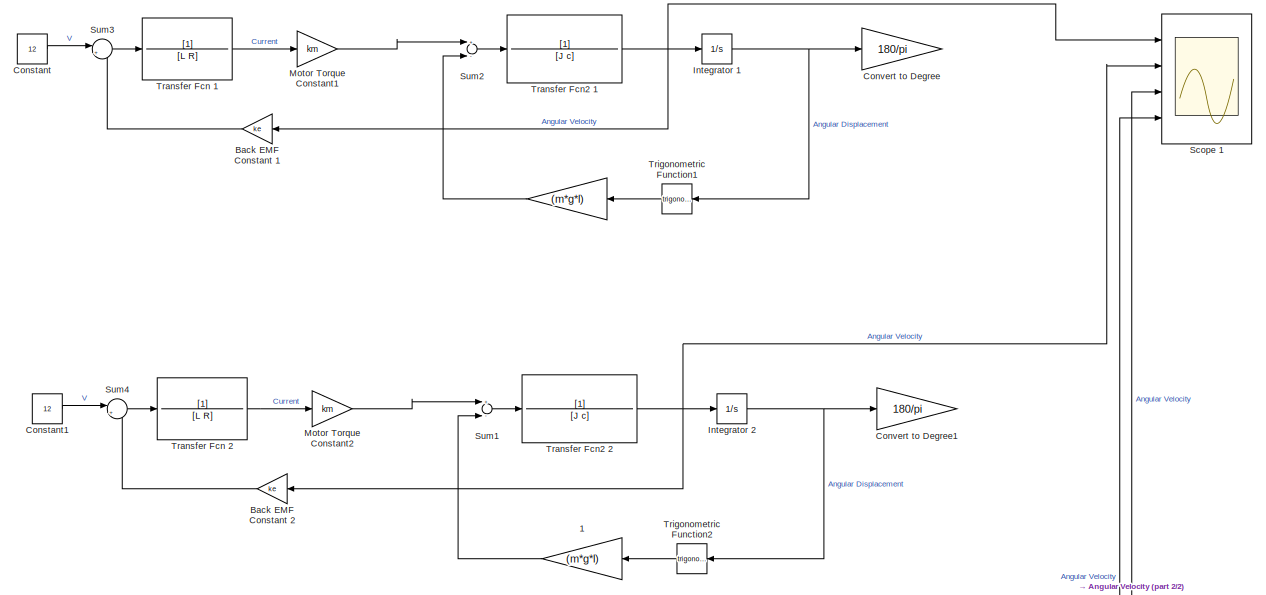
[diagram: root canvas - part 1/2, full width, top band]
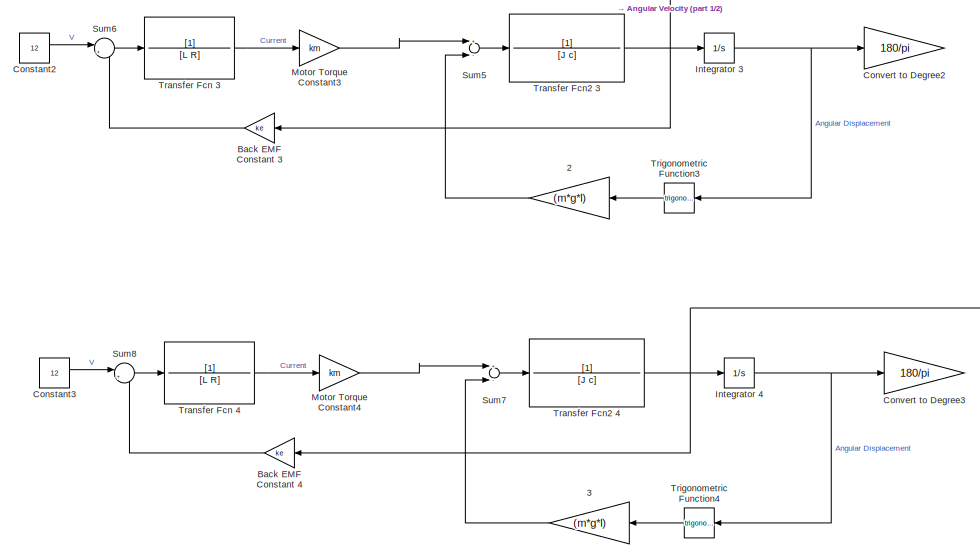
[diagram: root canvas - part 2/2, full width, bottom band]
MODEL slx_4739273ff9ae
KIND model
CONFIG AbsTol = auto
CONFIG EnableMultiTasking = off
CONFIG FixedStep = auto
CONFIG MaxStep = auto
CONFIG MinStep = auto
CONFIG RelTol = 1e-3
CONFIG SampleTimeConstraint = Unconstrained
CONFIG Solver = VariableStepAuto
CONFIG SolverName = VariableStepAuto
CONFIG StartTime = 0.0
CONFIG StopTime = 15
BLOCK [Gain]   
  Gain = (m*g*l)
  OutDataTypeStr = Inherit: Inherit via internal rule
  ParamDataTypeStr = Inherit: Inherit via internal rule
  SaturateOnIntegerOverflow = off
BLOCK [Gain]   1
  Gain = (m*g*l)
  OutDataTypeStr = Inherit: Inherit via internal rule
  ParamDataTypeStr = Inherit: Inherit via internal rule
  SaturateOnIntegerOverflow = off
BLOCK [Gain]   2
  Gain = (m*g*l)
  OutDataTypeStr = Inherit: Inherit via internal rule
  ParamDataTypeStr = Inherit: Inherit via internal rule
  SaturateOnIntegerOverflow = off
BLOCK [Gain]   3
  Gain = (m*g*l)
  OutDataTypeStr = Inherit: Inherit via internal rule
  ParamDataTypeStr = Inherit: Inherit via internal rule
  SaturateOnIntegerOverflow = off
BLOCK [Gain]   Convert to Degree
  Gain = 180/pi
  OutDataTypeStr = Inherit: Inherit via internal rule
  ParamDataTypeStr = Inherit: Inherit via internal rule
  SaturateOnIntegerOverflow = off
BLOCK [Gain]   Convert to Degree1
  Gain = 180/pi
  OutDataTypeStr = Inherit: Inherit via internal rule
  ParamDataTypeStr = Inherit: Inherit via internal rule
  SaturateOnIntegerOverflow = off
BLOCK [Gain]   Convert to Degree2
  Gain = 180/pi
  OutDataTypeStr = Inherit: Inherit via internal rule
  ParamDataTypeStr = Inherit: Inherit via internal rule
  SaturateOnIntegerOverflow = off
BLOCK [Gain]   Convert to Degree3
  Gain = 180/pi
  OutDataTypeStr = Inherit: Inherit via internal rule
  ParamDataTypeStr = Inherit: Inherit via internal rule
  SaturateOnIntegerOverflow = off
BLOCK [Gain] Back EMF Constant 1
  Gain = ke
  OutDataTypeStr = Inherit: Inherit via internal rule
  ParamDataTypeStr = Inherit: Inherit via internal rule
  SaturateOnIntegerOverflow = off
BLOCK [Gain] Back EMF Constant 2
  Gain = ke
  OutDataTypeStr = Inherit: Inherit via internal rule
  ParamDataTypeStr = Inherit: Inherit via internal rule
  SaturateOnIntegerOverflow = off
BLOCK [Gain] Back EMF Constant 3
  Gain = ke
  OutDataTypeStr = Inherit: Inherit via internal rule
  ParamDataTypeStr = Inherit: Inherit via internal rule
  SaturateOnIntegerOverflow = off
BLOCK [Gain] Back EMF Constant 4
  Gain = ke
  OutDataTypeStr = Inherit: Inherit via internal rule
  ParamDataTypeStr = Inherit: Inherit via internal rule
  SaturateOnIntegerOverflow = off
BLOCK [Constant] Constant
  Value = 12
BLOCK [Constant] Constant1
  Value = 12
BLOCK [Constant] Constant2
  Value = 12
BLOCK [Constant] Constant3
  Value = 12
BLOCK [Integrator] Integrator 1
  InitialCondition = 0*pi/180
  Ports = [1, 1]
BLOCK [Integrator] Integrator 2
  InitialCondition = 30*pi/180
  Ports = [1, 1]
BLOCK [Integrator] Integrator 3
  InitialCondition = 50*pi/180
  Ports = [1, 1]
BLOCK [Integrator] Integrator 4
  InitialCondition = 80*pi/180
  Ports = [1, 1]
BLOCK [Gain] Motor Torque Constant1
  Gain = km
  OutDataTypeStr = Inherit: Inherit via internal rule
  ParamDataTypeStr = Inherit: Inherit via internal rule
  SaturateOnIntegerOverflow = off
BLOCK [Gain] Motor Torque Constant2
  Gain = km
  OutDataTypeStr = Inherit: Inherit via internal rule
  ParamDataTypeStr = Inherit: Inherit via internal rule
  SaturateOnIntegerOverflow = off
BLOCK [Gain] Motor Torque Constant3
  Gain = km
  OutDataTypeStr = Inherit: Inherit via internal rule
  ParamDataTypeStr = Inherit: Inherit via internal rule
  SaturateOnIntegerOverflow = off
BLOCK [Gain] Motor Torque Constant4
  Gain = km
  OutDataTypeStr = Inherit: Inherit via internal rule
  ParamDataTypeStr = Inherit: Inherit via internal rule
  SaturateOnIntegerOverflow = off
BLOCK [Scope] Scope 1
  Floating = off
  NumInputPorts = 4
  Ports = [4]
  ScopeSpecificationString = Simulink.scopes.TimeScopeBlockCfg('CurrentConfiguration', extmgr.ConfigurationSet(extmgr.Configuration('Core','General UI',true),extmgr.Configuration('Core','Source UI',true),extmgr.Configuration('Sources','WiredSimulink',true,'DataLoggingVariableName','ScopeData1'),extmgr.Configuration('Visuals','Time Domain',true,'SerializedDisplays',{struct('MinYLimReal','-2.64522','MaxYLimReal','2.43181','YLab...<+2101ch>
BLOCK [Sum] Sum1
  InputSameDT = off
  Inputs = +-
  OutDataTypeStr = Inherit: Inherit via internal rule
  Ports = [2, 1]
  SaturateOnIntegerOverflow = off
BLOCK [Sum] Sum2
  InputSameDT = off
  Inputs = +-
  OutDataTypeStr = Inherit: Inherit via internal rule
  Ports = [2, 1]
  SaturateOnIntegerOverflow = off
BLOCK [Sum] Sum3
  IconShape = round
  InputSameDT = off
  Inputs = |+-
  OutDataTypeStr = Inherit: Inherit via internal rule
  Ports = [2, 1]
  SaturateOnIntegerOverflow = off
BLOCK [Sum] Sum4
  IconShape = round
  InputSameDT = off
  Inputs = |+-
  OutDataTypeStr = Inherit: Inherit via internal rule
  Ports = [2, 1]
  SaturateOnIntegerOverflow = off
BLOCK [Sum] Sum5
  InputSameDT = off
  Inputs = +-
  OutDataTypeStr = Inherit: Inherit via internal rule
  Ports = [2, 1]
  SaturateOnIntegerOverflow = off
BLOCK [Sum] Sum6
  IconShape = round
  InputSameDT = off
  Inputs = |+-
  OutDataTypeStr = Inherit: Inherit via internal rule
  Ports = [2, 1]
  SaturateOnIntegerOverflow = off
BLOCK [Sum] Sum7
  InputSameDT = off
  Inputs = +-
  OutDataTypeStr = Inherit: Inherit via internal rule
  Ports = [2, 1]
  SaturateOnIntegerOverflow = off
BLOCK [Sum] Sum8
  IconShape = round
  InputSameDT = off
  Inputs = |+-
  OutDataTypeStr = Inherit: Inherit via internal rule
  Ports = [2, 1]
  SaturateOnIntegerOverflow = off
BLOCK [TransferFcn] Transfer Fcn 1
  Denominator = [L R]
BLOCK [TransferFcn] Transfer Fcn 2
  Denominator = [L R]
BLOCK [TransferFcn] Transfer Fcn 3
  Denominator = [L R]
BLOCK [TransferFcn] Transfer Fcn 4
  Denominator = [L R]
BLOCK [TransferFcn] Transfer Fcn2 1
  Denominator = [J c]
BLOCK [TransferFcn] Transfer Fcn2 2
  Denominator = [J c]
BLOCK [TransferFcn] Transfer Fcn2 3
  Denominator = [J c]
BLOCK [TransferFcn] Transfer Fcn2 4
  Denominator = [J c]
BLOCK [Trigonometry] Trigonometric Function1
  Ports = [1, 1]
BLOCK [Trigonometry] Trigonometric Function2
  Ports = [1, 1]
BLOCK [Trigonometry] Trigonometric Function3
  Ports = [1, 1]
BLOCK [Trigonometry] Trigonometric Function4
  Ports = [1, 1]
LINE   1:1 -> Sum1:2
LINE   2:1 -> Sum5:2
LINE   3:1 -> Sum7:2
LINE   :1 -> Sum2:2
LINE Back EMF Constant 1:1 -> Sum3:2
LINE Back EMF Constant 2:1 -> Sum4:2
LINE Back EMF Constant 3:1 -> Sum6:2
LINE Back EMF Constant 4:1 -> Sum8:2
LINE Constant1:1 -> Sum4:1
LINE Constant2:1 -> Sum6:1
LINE Constant3:1 -> Sum8:1
LINE Constant:1 -> Sum3:1
NET Integrator 1:1 ->   Convert to Degree:1, Trigonometric Function1:1
NET Integrator 2:1 ->   Convert to Degree1:1, Trigonometric Function2:1
NET Integrator 3:1 ->   Convert to Degree2:1, Trigonometric Function3:1
NET Integrator 4:1 ->   Convert to Degree3:1, Trigonometric Function4:1
LINE Motor Torque Constant1:1 -> Sum2:1
LINE Motor Torque Constant2:1 -> Sum1:1
LINE Motor Torque Constant3:1 -> Sum5:1
LINE Motor Torque Constant4:1 -> Sum7:1
LINE Sum1:1 -> Transfer Fcn2 2:1
LINE Sum2:1 -> Transfer Fcn2 1:1
LINE Sum3:1 -> Transfer Fcn 1:1
LINE Sum4:1 -> Transfer Fcn 2:1
LINE Sum5:1 -> Transfer Fcn2 3:1
LINE Sum6:1 -> Transfer Fcn 3:1
LINE Sum7:1 -> Transfer Fcn2 4:1
LINE Sum8:1 -> Transfer Fcn 4:1
LINE Transfer Fcn 1:1 -> Motor Torque Constant1:1
LINE Transfer Fcn 2:1 -> Motor Torque Constant2:1
LINE Transfer Fcn 3:1 -> Motor Torque Constant3:1
LINE Transfer Fcn 4:1 -> Motor Torque Constant4:1
NET Transfer Fcn2 1:1 -> Back EMF Constant 1:1, Integrator 1:1, Scope 1:1
NET Transfer Fcn2 2:1 -> Back EMF Constant 2:1, Integrator 2:1, Scope 1:2
NET Transfer Fcn2 3:1 -> Back EMF Constant 3:1, Integrator 3:1, Scope 1:3
NET Transfer Fcn2 4:1 -> Back EMF Constant 4:1, Integrator 4:1, Scope 1:4
LINE Trigonometric Function1:1 ->   :1
LINE Trigonometric Function2:1 ->   1:1
LINE Trigonometric Function3:1 ->   2:1
LINE Trigonometric Function4:1 ->   3:1
note: NET lines group one-source signal fan-out (src -> all destinations, sorted); 1:1 wires keep LINE
